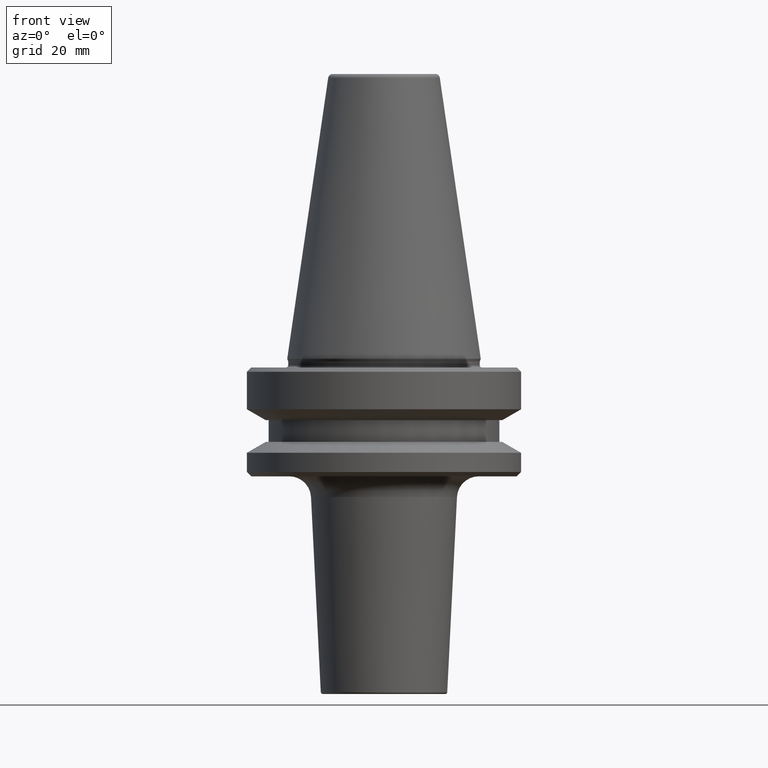
[diagram: clean part render]
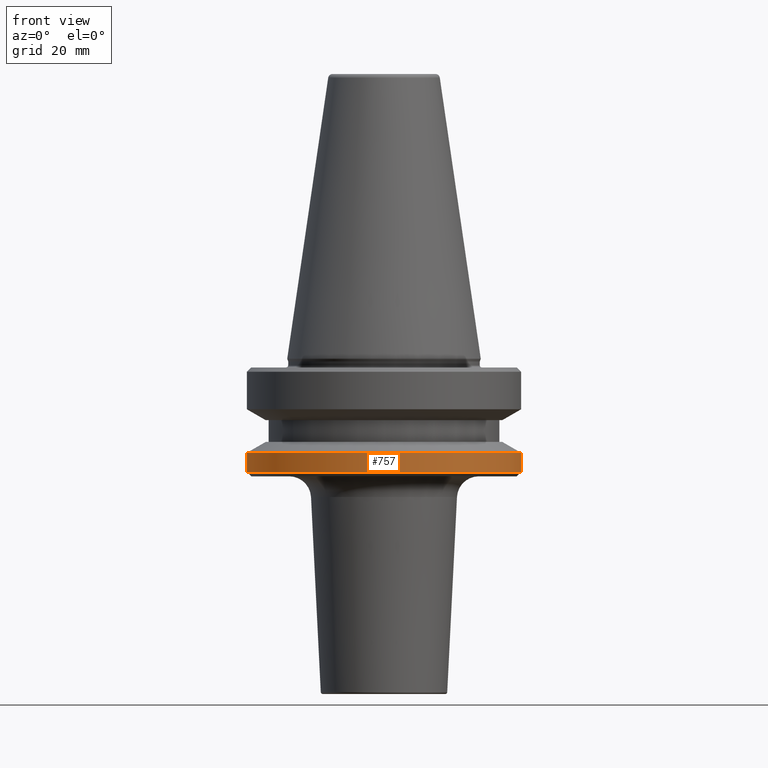
[diagram: same view with one face highlighted and labeled with its STEP entity id]
A machine part, front view. The second image highlights one B-rep face of the part: STEP entity #757.
In plain terms, the highlighted cylindrical surface (partial cylindrical patch) has radius 31.5 mm, axis along (-0, -0, 1).
Its self-contained STEP definition (entity closure, byte-faithful):
#24 = VERTEX_POINT ( 'NONE', #168 ) ;
#44 = AXIS2_PLACEMENT_3D ( 'NONE', #148, #321, #324 ) ;
#109 = EDGE_CURVE ( 'NONE', #225, #24, #575, .T. ) ;
#115 = EDGE_LOOP ( 'NONE', ( #607, #119, #442, #239 ) ) ;
#119 = ORIENTED_EDGE ( 'NONE', *, *, #241, .T. ) ;
#148 = CARTESIAN_POINT ( 'NONE',  ( 0.0000000000000000000, 0.0000000000000000000, -91.40000000000037500 ) ) ;
#161 = CIRCLE ( 'NONE', #44, 31.50000000000008500 ) ;
#168 = CARTESIAN_POINT ( 'NONE',  ( 31.50000000000008500, 0.0000000000000000000, -87.00014200631733300 ) ) ;
#192 = DIRECTION ( 'NONE',  ( -0.0000000000000000000, -0.0000000000000000000, 1.000000000000000000 ) ) ;
#225 = VERTEX_POINT ( 'NONE', #781 ) ;
#239 = ORIENTED_EDGE ( 'NONE', *, *, #992, .F. ) ;
#241 = EDGE_CURVE ( 'NONE', #559, #225, #161, .T. ) ;
#321 = DIRECTION ( 'NONE',  ( -0.0000000000000000000, -0.0000000000000000000, 1.000000000000000000 ) ) ;
#324 = DIRECTION ( 'NONE',  ( 1.000000000000000000, 0.0000000000000000000, 0.0000000000000000000 ) ) ;
#330 = VECTOR ( 'NONE', #858, 1000.000000000000000 ) ;
#387 = CARTESIAN_POINT ( 'NONE',  ( -31.50000000000008500, 3.857637417314172900E-015, -87.00014200631733300 ) ) ;
#393 = DIRECTION ( 'NONE',  ( 1.000000000000000000, 0.0000000000000000000, 0.0000000000000000000 ) ) ;
#413 = CARTESIAN_POINT ( 'NONE',  ( -31.50000000000008500, 3.857637417314172900E-015, -91.40000000000037500 ) ) ;
#428 = FACE_OUTER_BOUND ( 'NONE', #115, .T. ) ;
#442 = ORIENTED_EDGE ( 'NONE', *, *, #109, .T. ) ;
#443 = CIRCLE ( 'NONE', #649, 31.50000000000008500 ) ;
#457 = AXIS2_PLACEMENT_3D ( 'NONE', #946, #464, #602 ) ;
#464 = DIRECTION ( 'NONE',  ( -0.0000000000000000000, -0.0000000000000000000, 1.000000000000000000 ) ) ;
#476 = VECTOR ( 'NONE', #192, 1000.000000000000000 ) ;
#488 = CARTESIAN_POINT ( 'NONE',  ( 31.50000000000008500, 0.0000000000000000000, 6.357346922996331500 ) ) ;
#559 = VERTEX_POINT ( 'NONE', #413 ) ;
#575 = LINE ( 'NONE', #488, #476 ) ;
#602 = DIRECTION ( 'NONE',  ( 1.000000000000000000, 0.0000000000000000000, 0.0000000000000000000 ) ) ;
#607 = ORIENTED_EDGE ( 'NONE', *, *, #843, .F. ) ;
#649 = AXIS2_PLACEMENT_3D ( 'NONE', #959, #783, #393 ) ;
#757 = ADVANCED_FACE ( 'NONE', ( #428 ), #827, .T. ) ;
#767 = CARTESIAN_POINT ( 'NONE',  ( -31.50000000000008500, 3.857637417314172900E-015, 6.357346922996331500 ) ) ;
#781 = CARTESIAN_POINT ( 'NONE',  ( 31.50000000000008500, 0.0000000000000000000, -91.40000000000037500 ) ) ;
#783 = DIRECTION ( 'NONE',  ( -0.0000000000000000000, -0.0000000000000000000, 1.000000000000000000 ) ) ;
#827 = CYLINDRICAL_SURFACE ( 'NONE', #457, 31.50000000000008500 ) ;
#843 = EDGE_CURVE ( 'NONE', #559, #942, #971, .T. ) ;
#858 = DIRECTION ( 'NONE',  ( -0.0000000000000000000, -0.0000000000000000000, 1.000000000000000000 ) ) ;
#942 = VERTEX_POINT ( 'NONE', #387 ) ;
#946 = CARTESIAN_POINT ( 'NONE',  ( 0.0000000000000000000, 0.0000000000000000000, 6.357346922996331500 ) ) ;
#959 = CARTESIAN_POINT ( 'NONE',  ( 0.0000000000000000000, 0.0000000000000000000, -87.00014200631733300 ) ) ;
#971 = LINE ( 'NONE', #767, #330 ) ;
#992 = EDGE_CURVE ( 'NONE', #942, #24, #443, .T. ) ;